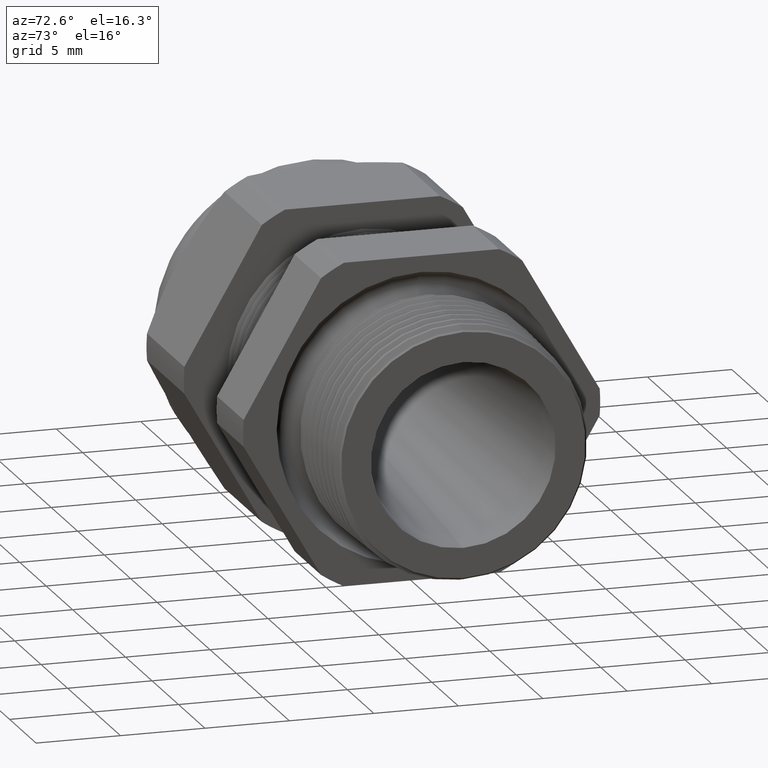
[diagram: clean part render]
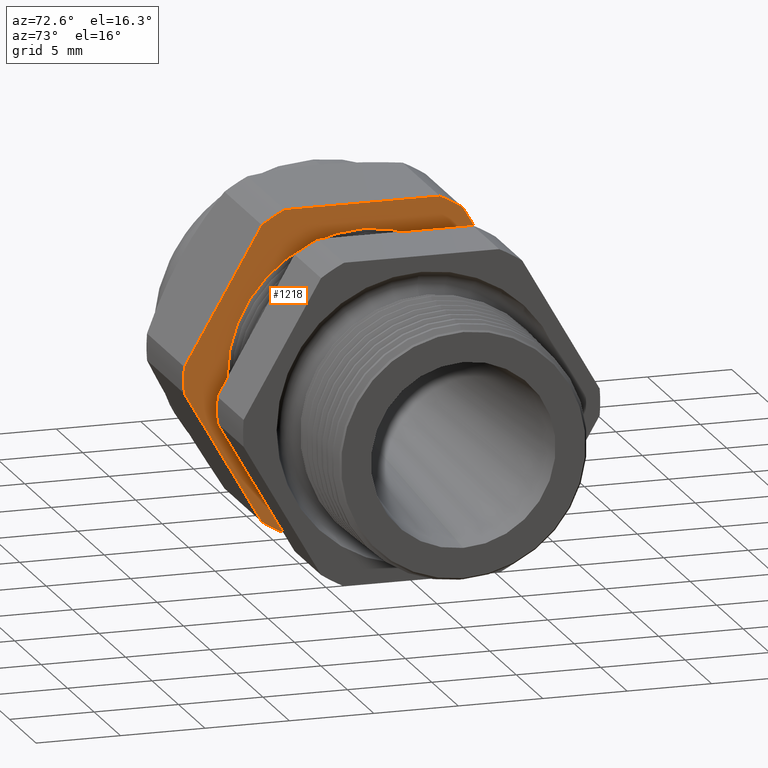
[diagram: same view with one face highlighted and labeled with its STEP entity id]
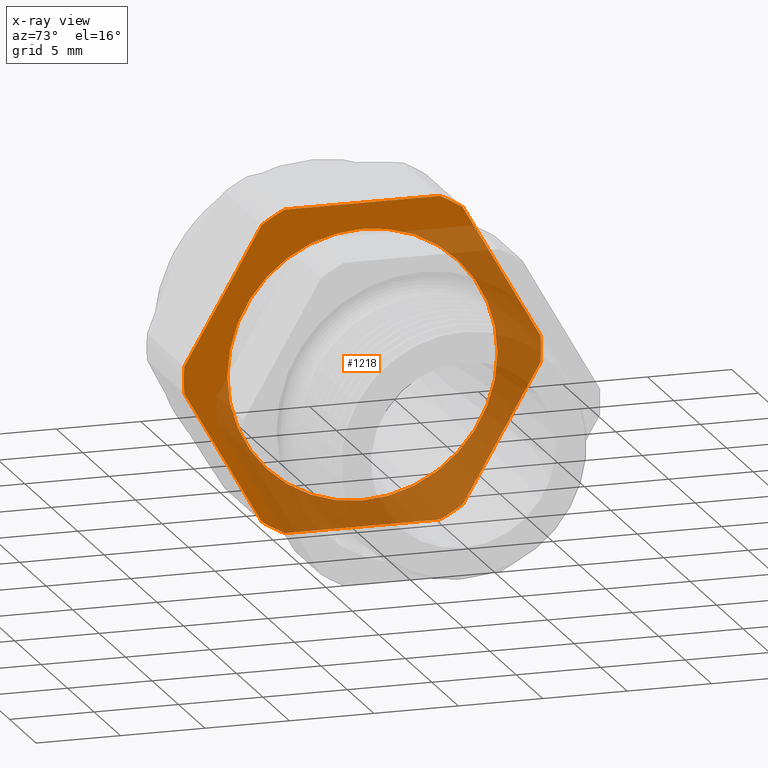
[diagram: x-ray of the same camera — body ghosted, the highlighted face saturated]
A machine part, auxiliary view. The second image highlights one B-rep face of the part: STEP entity #1218.
The next image is the same camera in x-ray: the body ghosted, the highlighted face saturated — about 57% of this face is hidden behind the body in this view.
In plain terms, the highlighted planar face has unit normal (1, 0, 0).
Its self-contained STEP definition (entity closure, byte-faithful):
#320 = VERTEX_POINT ( 'NONE', #1937 ) ;
#322 = EDGE_CURVE ( 'NONE', #338, #320, #1936, .T. ) ;
#325 = VERTEX_POINT ( 'NONE', #1927 ) ;
#327 = EDGE_CURVE ( 'NONE', #347, #325, #1926, .T. ) ;
#338 = VERTEX_POINT ( 'NONE', #1951 ) ;
#347 = VERTEX_POINT ( 'NONE', #1994 ) ;
#359 = EDGE_CURVE ( 'NONE', #370, #440, #1975, .T. ) ;
#370 = VERTEX_POINT ( 'NONE', #2020 ) ;
#372 = EDGE_CURVE ( 'NONE', #386, #370, #2018, .T. ) ;
#386 = VERTEX_POINT ( 'NONE', #2040 ) ;
#388 = EDGE_CURVE ( 'NONE', #320, #386, #2039, .T. ) ;
#391 = EDGE_CURVE ( 'NONE', #325, #338, #2092, .T. ) ;
#400 = VERTEX_POINT ( 'NONE', #2067 ) ;
#403 = VERTEX_POINT ( 'NONE', #2062 ) ;
#405 = EDGE_CURVE ( 'NONE', #419, #403, #2124, .T. ) ;
#414 = VERTEX_POINT ( 'NONE', #2104 ) ;
#419 = VERTEX_POINT ( 'NONE', #2093 ) ;
#421 = EDGE_CURVE ( 'NONE', #440, #419, #2153, .T. ) ;
#440 = VERTEX_POINT ( 'NONE', #2157 ) ;
#454 = EDGE_CURVE ( 'NONE', #469, #347, #2240, .T. ) ;
#460 = EDGE_CURVE ( 'NONE', #414, #400, #2220, .T. ) ;
#469 = VERTEX_POINT ( 'NONE', #2260 ) ;
#471 = EDGE_CURVE ( 'NONE', #400, #469, #2259, .T. ) ;
#474 = EDGE_CURVE ( 'NONE', #403, #414, #2254, .T. ) ;
#1025 = EDGE_CURVE ( 'NONE', #1069, #1079, #3333, .T. ) ;
#1069 = VERTEX_POINT ( 'NONE', #3432 ) ;
#1079 = VERTEX_POINT ( 'NONE', #3418 ) ;
#1218 = ADVANCED_FACE ( 'NONE', ( #3680, #3679 ), #3678, .T. ) ;
#1219 = EDGE_LOOP ( 'NONE', ( #1220, #1281 ) ) ;
#1220 = ORIENTED_EDGE ( 'NONE', *, *, #1221, .F. ) ;
#1221 = EDGE_CURVE ( 'NONE', #1079, #1069, #3673, .T. ) ;
#1269 = ORIENTED_EDGE ( 'NONE', *, *, #405, .T. ) ;
#1270 = ORIENTED_EDGE ( 'NONE', *, *, #474, .T. ) ;
#1271 = ORIENTED_EDGE ( 'NONE', *, *, #460, .T. ) ;
#1272 = ORIENTED_EDGE ( 'NONE', *, *, #471, .T. ) ;
#1281 = ORIENTED_EDGE ( 'NONE', *, *, #1025, .F. ) ;
#1282 = EDGE_LOOP ( 'NONE', ( #1283, #1284, #1285, #1286, #1287, #1288, #1289, #1290, #1269, #1270, #1271, #1272 ) ) ;
#1283 = ORIENTED_EDGE ( 'NONE', *, *, #454, .T. ) ;
#1284 = ORIENTED_EDGE ( 'NONE', *, *, #327, .T. ) ;
#1285 = ORIENTED_EDGE ( 'NONE', *, *, #391, .T. ) ;
#1286 = ORIENTED_EDGE ( 'NONE', *, *, #322, .T. ) ;
#1287 = ORIENTED_EDGE ( 'NONE', *, *, #388, .T. ) ;
#1288 = ORIENTED_EDGE ( 'NONE', *, *, #372, .T. ) ;
#1289 = ORIENTED_EDGE ( 'NONE', *, *, #359, .T. ) ;
#1290 = ORIENTED_EDGE ( 'NONE', *, *, #421, .T. ) ;
#1922 = DIRECTION ( 'NONE',  ( 0.0000000000000000000, 0.0000000000000000000, -1.000000000000000000 ) ) ;
#1923 = DIRECTION ( 'NONE',  ( 1.000000000000000000, 0.0000000000000000000, 0.0000000000000000000 ) ) ;
#1924 = CARTESIAN_POINT ( 'NONE',  ( -0.7508661417322833900, 0.0000000000000000000, 0.0000000000000000000 ) ) ;
#1925 = AXIS2_PLACEMENT_3D ( 'NONE', #1924, #1923, #1922 ) ;
#1926 = CIRCLE ( 'NONE', #1925, 0.4162500000000000100 ) ;
#1927 = CARTESIAN_POINT ( 'NONE',  ( -0.7508661417322833900, 0.4150909474475088000, 0.03104138925901233200 ) ) ;
#1932 = DIRECTION ( 'NONE',  ( 0.0000000000000000000, 0.0000000000000000000, -1.000000000000000000 ) ) ;
#1933 = DIRECTION ( 'NONE',  ( 1.000000000000000000, 0.0000000000000000000, 0.0000000000000000000 ) ) ;
#1934 = CARTESIAN_POINT ( 'NONE',  ( -0.7508661417322833900, 0.0000000000000000000, 0.0000000000000000000 ) ) ;
#1935 = AXIS2_PLACEMENT_3D ( 'NONE', #1934, #1933, #1932 ) ;
#1936 = CIRCLE ( 'NONE', #1935, 0.4162499999999999500 ) ;
#1937 = CARTESIAN_POINT ( 'NONE',  ( -0.7508661417322833900, 0.1806628420566887000, 0.3749999999999999400 ) ) ;
#1951 = CARTESIAN_POINT ( 'NONE',  ( -0.7508661417322833900, 0.2344281053908206000, 0.3439586107409877100 ) ) ;
#1972 = DIRECTION ( 'NONE',  ( 0.0000000000000000000, -0.4999999999999998300, -0.8660254037844386000 ) ) ;
#1973 = VECTOR ( 'NONE', #1972, 39.37007874015748900 ) ;
#1974 = CARTESIAN_POINT ( 'NONE',  ( -0.7508661417322833900, -0.2460095264191647400, 0.3238990010960491300 ) ) ;
#1975 = LINE ( 'NONE', #1974, #1973 ) ;
#1994 = CARTESIAN_POINT ( 'NONE',  ( -0.7508661417322833900, 0.4150909474475088500, -0.03104138925901223400 ) ) ;
#2014 = DIRECTION ( 'NONE',  ( 0.0000000000000000000, 0.0000000000000000000, -1.000000000000000000 ) ) ;
#2015 = DIRECTION ( 'NONE',  ( 1.000000000000000000, 0.0000000000000000000, 0.0000000000000000000 ) ) ;
#2016 = CARTESIAN_POINT ( 'NONE',  ( -0.7508661417322833900, 0.0000000000000000000, 0.0000000000000000000 ) ) ;
#2017 = AXIS2_PLACEMENT_3D ( 'NONE', #2016, #2015, #2014 ) ;
#2018 = CIRCLE ( 'NONE', #2017, 0.4162500000000000100 ) ;
#2020 = CARTESIAN_POINT ( 'NONE',  ( -0.7508661417322833900, -0.2344281053908205100, 0.3439586107409878200 ) ) ;
#2036 = DIRECTION ( 'NONE',  ( 0.0000000000000000000, -1.000000000000000000, 0.0000000000000000000 ) ) ;
#2037 = VECTOR ( 'NONE', #2036, 39.37007874015748100 ) ;
#2038 = CARTESIAN_POINT ( 'NONE',  ( -0.7508661417322833900, 0.3150000000000000000, 0.3749999999999999400 ) ) ;
#2039 = LINE ( 'NONE', #2038, #2037 ) ;
#2040 = CARTESIAN_POINT ( 'NONE',  ( -0.7508661417322833900, -0.1806628420566886700, 0.3749999999999999400 ) ) ;
#2062 = CARTESIAN_POINT ( 'NONE',  ( -0.7508661417322833900, -0.2344281053908202100, -0.3439586107409880500 ) ) ;
#2067 = CARTESIAN_POINT ( 'NONE',  ( -0.7508661417322833900, 0.1806628420566884800, -0.3750000000000001100 ) ) ;
#2084 = DIRECTION ( 'NONE',  ( 0.0000000000000000000, -0.4999999999999998300, 0.8660254037844386000 ) ) ;
#2085 = VECTOR ( 'NONE', #2084, 39.37007874015748900 ) ;
#2086 = CARTESIAN_POINT ( 'NONE',  ( -0.7508661417322833900, 0.4035095264191646000, 0.05110099890395098500 ) ) ;
#2092 = LINE ( 'NONE', #2086, #2085 ) ;
#2093 = CARTESIAN_POINT ( 'NONE',  ( -0.7508661417322833900, -0.4150909474475088000, -0.03104138925901237000 ) ) ;
#2104 = CARTESIAN_POINT ( 'NONE',  ( -0.7508661417322833900, -0.1806628420566883900, -0.3750000000000001100 ) ) ;
#2121 = DIRECTION ( 'NONE',  ( 0.0000000000000000000, 0.5000000000000002200, -0.8660254037844384900 ) ) ;
#2122 = VECTOR ( 'NONE', #2121, 39.37007874015748900 ) ;
#2123 = CARTESIAN_POINT ( 'NONE',  ( -0.7508661417322833900, -0.2460095264191644600, -0.3238990010960492400 ) ) ;
#2124 = LINE ( 'NONE', #2123, #2122 ) ;
#2149 = DIRECTION ( 'NONE',  ( 0.0000000000000000000, 0.0000000000000000000, -1.000000000000000000 ) ) ;
#2150 = DIRECTION ( 'NONE',  ( 1.000000000000000000, 0.0000000000000000000, 0.0000000000000000000 ) ) ;
#2151 = CARTESIAN_POINT ( 'NONE',  ( -0.7508661417322833900, 0.0000000000000000000, 0.0000000000000000000 ) ) ;
#2152 = AXIS2_PLACEMENT_3D ( 'NONE', #2151, #2150, #2149 ) ;
#2153 = CIRCLE ( 'NONE', #2152, 0.4162500000000000100 ) ;
#2157 = CARTESIAN_POINT ( 'NONE',  ( -0.7508661417322833900, -0.4150909474475088000, 0.03104138925901241800 ) ) ;
#2217 = DIRECTION ( 'NONE',  ( 0.0000000000000000000, 1.000000000000000000, 0.0000000000000000000 ) ) ;
#2218 = VECTOR ( 'NONE', #2217, 39.37007874015748100 ) ;
#2219 = CARTESIAN_POINT ( 'NONE',  ( -0.7508661417322833900, 0.3150000000000000000, -0.3750000000000001100 ) ) ;
#2220 = LINE ( 'NONE', #2219, #2218 ) ;
#2233 = DIRECTION ( 'NONE',  ( 0.0000000000000000000, 0.5000000000000001100, 0.8660254037844386000 ) ) ;
#2234 = VECTOR ( 'NONE', #2233, 39.37007874015748900 ) ;
#2235 = CARTESIAN_POINT ( 'NONE',  ( -0.7508661417322833900, 0.4035095264191646000, -0.05110099890395099200 ) ) ;
#2240 = LINE ( 'NONE', #2235, #2234 ) ;
#2250 = DIRECTION ( 'NONE',  ( 0.0000000000000000000, 0.0000000000000000000, -1.000000000000000000 ) ) ;
#2251 = DIRECTION ( 'NONE',  ( 1.000000000000000000, 0.0000000000000000000, 0.0000000000000000000 ) ) ;
#2252 = CARTESIAN_POINT ( 'NONE',  ( -0.7508661417322833900, 0.0000000000000000000, 0.0000000000000000000 ) ) ;
#2253 = AXIS2_PLACEMENT_3D ( 'NONE', #2252, #2251, #2250 ) ;
#2254 = CIRCLE ( 'NONE', #2253, 0.4162500000000000100 ) ;
#2255 = DIRECTION ( 'NONE',  ( 0.0000000000000000000, 0.0000000000000000000, -1.000000000000000000 ) ) ;
#2256 = DIRECTION ( 'NONE',  ( 1.000000000000000000, 0.0000000000000000000, 0.0000000000000000000 ) ) ;
#2257 = CARTESIAN_POINT ( 'NONE',  ( -0.7508661417322833900, 0.0000000000000000000, 0.0000000000000000000 ) ) ;
#2258 = AXIS2_PLACEMENT_3D ( 'NONE', #2257, #2256, #2255 ) ;
#2259 = CIRCLE ( 'NONE', #2258, 0.4162500000000000100 ) ;
#2260 = CARTESIAN_POINT ( 'NONE',  ( -0.7508661417322833900, 0.2344281053908202900, -0.3439586107409879900 ) ) ;
#3329 = DIRECTION ( 'NONE',  ( 0.0000000000000000000, 0.0000000000000000000, -1.000000000000000000 ) ) ;
#3330 = DIRECTION ( 'NONE',  ( 1.000000000000000000, 0.0000000000000000000, 0.0000000000000000000 ) ) ;
#3331 = CARTESIAN_POINT ( 'NONE',  ( -0.7508661417322833900, 0.0000000000000000000, 0.0000000000000000000 ) ) ;
#3332 = AXIS2_PLACEMENT_3D ( 'NONE', #3331, #3330, #3329 ) ;
#3333 = CIRCLE ( 'NONE', #3332, 0.3150000000000000000 ) ;
#3418 = CARTESIAN_POINT ( 'NONE',  ( -0.7508661417322833900, 0.0000000000000000000, 0.3150000000000000000 ) ) ;
#3432 = CARTESIAN_POINT ( 'NONE',  ( -0.7508661417322833900, 3.857637417314162700E-017, -0.3150000000000000000 ) ) ;
#3669 = DIRECTION ( 'NONE',  ( 0.0000000000000000000, 0.0000000000000000000, -1.000000000000000000 ) ) ;
#3670 = DIRECTION ( 'NONE',  ( 1.000000000000000000, 0.0000000000000000000, 0.0000000000000000000 ) ) ;
#3671 = CARTESIAN_POINT ( 'NONE',  ( -0.7508661417322833900, 0.0000000000000000000, 0.0000000000000000000 ) ) ;
#3672 = AXIS2_PLACEMENT_3D ( 'NONE', #3671, #3670, #3669 ) ;
#3673 = CIRCLE ( 'NONE', #3672, 0.3150000000000000000 ) ;
#3674 = DIRECTION ( 'NONE',  ( 0.0000000000000000000, 0.0000000000000000000, -1.000000000000000000 ) ) ;
#3675 = DIRECTION ( 'NONE',  ( 1.000000000000000000, 0.0000000000000000000, 0.0000000000000000000 ) ) ;
#3676 = CARTESIAN_POINT ( 'NONE',  ( -0.7508661417322833900, 0.3150000000000000000, 0.0000000000000000000 ) ) ;
#3677 = AXIS2_PLACEMENT_3D ( 'NONE', #3676, #3675, #3674 ) ;
#3678 = PLANE ( 'NONE',  #3677 ) ;
#3679 = FACE_OUTER_BOUND ( 'NONE', #1282, .T. ) ;
#3680 = FACE_BOUND ( 'NONE', #1219, .T. ) ;